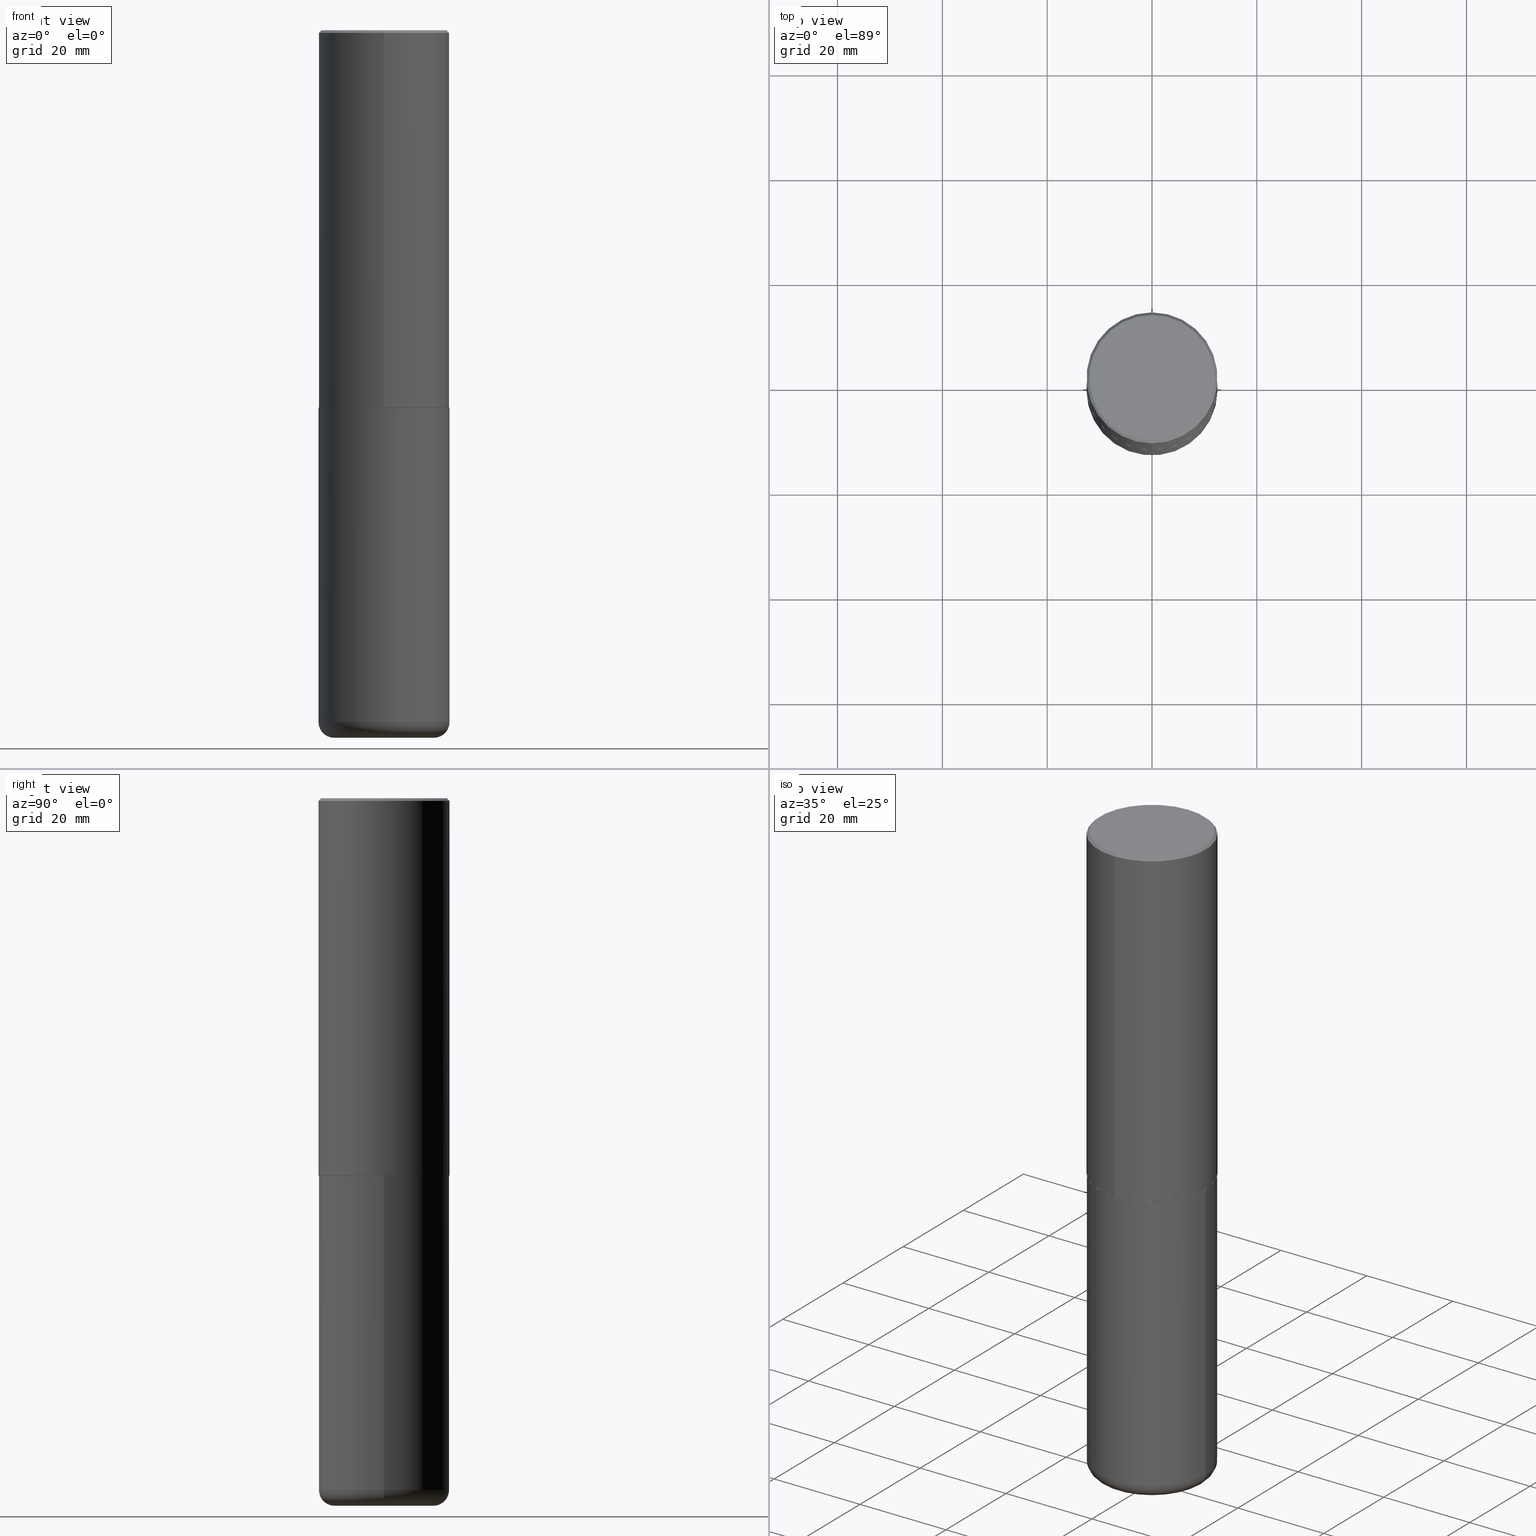
[diagram: canonical four-view strip — front | top / right | iso, engineering-drawing reading convention]
A machine part, canonical four-view strip (front | top / right | iso — engineering-drawing reading convention). The complete STEP part file that produces these views, byte-faithful:
ISO-10303-21;
HEADER;
FILE_DESCRIPTION (( 'STEP AP203' ),
    '1' );
FILE_NAME ('74566.STEP',
    '2024-03-06T15:30:34',
    ( '' ),
    ( '' ),
    'SwSTEP 2.0',
    'SolidWorks 2023',
    '' );
FILE_SCHEMA (( 'CONFIG_CONTROL_DESIGN' ));
ENDSEC;

DATA;
#1 = ADVANCED_FACE ( 'NONE', ( #165 ), #102, .T. ) ;
#2 = CARTESIAN_POINT ( 'NONE',  ( 6.929045905378983914E-29, -9.894783109142616722E-15, -2.833700000000000330 ) ) ;
#3 = ORIENTED_EDGE ( 'NONE', *, *, #220, .F. ) ;
#4 = FACE_OUTER_BOUND ( 'NONE', #190, .T. ) ;
#5 = CIRCLE ( 'NONE', #189, 0.4911499999999999755 ) ;
#6 = CARTESIAN_POINT ( 'NONE',  ( 4.890458344481786073E-31, -6.983649016580912824E-17, -0.02000000000000010797 ) ) ;
#7 = VERTEX_POINT ( 'NONE', #270 ) ;
#8 = ORIENTED_EDGE ( 'NONE', *, *, #78, .T. ) ;
#9 = CARTESIAN_POINT ( 'NONE',  ( 6.931491134551223323E-29, -9.898274933650907147E-15, -2.834700000000000220 ) ) ;
#10 = ORIENTED_EDGE ( 'NONE', *, *, #351, .F. ) ;
#11 = DIRECTION ( 'NONE',  ( -2.445468806185136597E-29, 3.491481338843145583E-15, 1.000000000000000000 ) ) ;
#12 = ORIENTED_EDGE ( 'NONE', *, *, #244, .F. ) ;
#13 = DIRECTION ( 'NONE',  ( -2.445468806185136597E-29, 3.491481338843145583E-15, 1.000000000000000000 ) ) ;
#14 =( LENGTH_UNIT ( ) NAMED_UNIT ( * ) SI_UNIT ( $, .METRE. ) );
#15 = CONICAL_SURFACE ( 'NONE', #378, 0.4911499999999999755, 0.7853981633977213939 ) ;
#16 = CARTESIAN_POINT ( 'NONE',  ( -3.429682119145539948E-15, -0.4911500000000098565, -2.834699999999998443 ) ) ;
#17 = DIRECTION ( 'NONE',  ( 7.105427357601001859E-15, 1.000000000000000000, -3.491481338843145583E-15 ) ) ;
#18 = DIRECTION ( 'NONE',  ( -2.445468806185136597E-29, 3.491481338843145583E-15, 1.000000000000000000 ) ) ;
#19 = DIRECTION ( 'NONE',  ( 1.000000000000000000, -6.982962677686265922E-15, 4.876176775795935793E-29 ) ) ;
#20 = CIRCLE ( 'NONE', #370, 0.4921500000000003094 ) ;
#21 = CARTESIAN_POINT ( 'NONE',  ( 6.932170424893007423E-29, -9.897302151218665974E-15, -2.834700000000000220 ) ) ;
#22 = EDGE_CURVE ( 'NONE', #402, #34, #335, .T. ) ;
#23 = PERSON_AND_ORGANIZATION_ROLE ( 'classification_officer' ) ;
#24 = APPROVAL_ROLE ( '' ) ;
#25 = CIRCLE ( 'NONE', #115, 0.4911499999999999755 ) ;
#26 = LOCAL_TIME ( 10, 30, 34.00000000000000000, #352 ) ;
#27 = DATE_AND_TIME ( #286, #150 ) ;
#28 = ORIENTED_EDGE ( 'NONE', *, *, #49, .T. ) ;
#29 = EDGE_CURVE ( 'NONE', #7, #127, #368, .T. ) ;
#30 = PRODUCT_DEFINITION_FORMATION_WITH_SPECIFIED_SOURCE ( 'ANY', '', #360, .NOT_KNOWN. ) ;
#31 = DIRECTION ( 'NONE',  ( -2.445229172240879339E-29, 3.491824508290438613E-15, 1.000000000000000000 ) ) ;
#32 = EDGE_CURVE ( 'NONE', #33, #401, #364, .T. ) ;
#33 = VERTEX_POINT ( 'NONE', #87 ) ;
#34 = VERTEX_POINT ( 'NONE', #197 ) ;
#35 = CIRCLE ( 'NONE', #304, 0.4921499999999999764 ) ;
#36 = CARTESIAN_POINT ( 'NONE',  ( 0.4921499999999999764, -3.436665081823295777E-15, 2.399810400207969603E-29 ) ) ;
#37 = ORIENTED_EDGE ( 'NONE', *, *, #291, .T. ) ;
#38 = CC_DESIGN_SECURITY_CLASSIFICATION ( #415, ( #30 ) ) ;
#39 = CARTESIAN_POINT ( 'NONE',  ( 0.4921499999999999764, -1.333396723304196175E-14, -2.834700000000000220 ) ) ;
#40 = VERTEX_POINT ( 'NONE', #39 ) ;
#41 = DIRECTION ( 'NONE',  ( -1.000000000000000000, 6.982962677686265922E-15, -4.876176775795935793E-29 ) ) ;
#42 = DIRECTION ( 'NONE',  ( -2.445229172240879899E-29, 3.491824508290438219E-15, 1.000000000000000000 ) ) ;
#43 = CARTESIAN_POINT ( 'NONE',  ( 0.000000000000000000, 0.000000000000000000, 0.000000000000000000 ) ) ;
#44 = LENGTH_MEASURE_WITH_UNIT ( LENGTH_MEASURE( 0.02539999999999999897 ), #14 );
#45 = AXIS2_PLACEMENT_3D ( 'NONE', #43, #375, #19 ) ;
#46 = DIRECTION ( 'NONE',  ( -4.851104656540961908E-15, -0.7071067811865496822, -0.7071067811865453523 ) ) ;
#47 = ADVANCED_FACE ( 'NONE', ( #4 ), #229, .T. ) ;
#48 = DIRECTION ( 'NONE',  ( -6.982962677686265922E-15, -1.000000000000000000, 3.330506545156063891E-15 ) ) ;
#49 = EDGE_CURVE ( 'NONE', #401, #167, #155, .T. ) ;
#50 = AXIS2_PLACEMENT_3D ( 'NONE', #376, #208, #380 ) ;
#51 = APPROVAL ( #52, 'UNSPECIFIED' ) ;
#52 = APPROVAL_STATUS ( 'not_yet_approved' ) ;
#53 = PERSON_AND_ORGANIZATION ( #163, #215 ) ;
#54 = VERTEX_POINT ( 'NONE', #16 ) ;
#55 = CIRCLE ( 'NONE', #340, 0.4921499999999999764 ) ;
#56 = CC_DESIGN_PERSON_AND_ORGANIZATION_ASSIGNMENT ( #416, #388, ( #360 ) ) ;
#57 = APPROVAL_STATUS ( 'not_yet_approved' ) ;
#58 = CALENDAR_DATE ( 2024, 6, 3 ) ;
#59 = AXIS2_PLACEMENT_3D ( 'NONE', #140, #110, #114 ) ;
#60 = LOCAL_TIME ( 10, 30, 34.00000000000000000, #85 ) ;
#61 = DIRECTION ( 'NONE',  ( -2.445229172240879899E-29, 3.491824508290438613E-15, 1.000000000000000000 ) ) ;
#62 = ORIENTED_EDGE ( 'NONE', *, *, #99, .T. ) ;
#63 = DIRECTION ( 'NONE',  ( -2.445229172240879899E-29, 3.491824508290438219E-15, 1.000000000000000000 ) ) ;
#64 = ORIENTED_EDGE ( 'NONE', *, *, #168, .T. ) ;
#65 = CARTESIAN_POINT ( 'NONE',  ( 1.270885683886353718E-28, -1.814487936983394718E-14, -5.196900000000000297 ) ) ;
#66 = ORIENTED_EDGE ( 'NONE', *, *, #406, .T. ) ;
#67 = ORIENTED_EDGE ( 'NONE', *, *, #75, .T. ) ;
#68 = CC_DESIGN_PERSON_AND_ORGANIZATION_ASSIGNMENT ( #249, #212, ( #30 ) ) ;
#69 = VECTOR ( 'NONE', #369, 39.37007874015748143 ) ;
#70 = CARTESIAN_POINT ( 'NONE',  ( 1.270885683886353718E-28, -1.814487936983394718E-14, -5.196900000000000297 ) ) ;
#71 = CARTESIAN_POINT ( 'NONE',  ( 0.000000000000000000, 0.000000000000000000, 0.000000000000000000 ) ) ;
#72 = CARTESIAN_POINT ( 'NONE',  ( 1.299766670487400218E-28, -1.855722331595131973E-14, -5.315000000000000391 ) ) ;
#73 = CARTESIAN_POINT ( 'NONE',  ( 0.000000000000000000, 0.000000000000000000, 0.000000000000000000 ) ) ;
#74 = DIRECTION ( 'NONE',  ( -6.982962677686266711E-15, -1.000000000000000000, 3.491481338843145583E-15 ) ) ;
#75 = EDGE_CURVE ( 'NONE', #151, #127, #396, .T. ) ;
#76 = CYLINDRICAL_SURFACE ( 'NONE', #188, 0.4921500000000000874 ) ;
#77 = CARTESIAN_POINT ( 'NONE',  ( 4.890458344481786073E-31, -6.983649016580912824E-17, -0.02000000000000010797 ) ) ;
#78 = EDGE_CURVE ( 'NONE', #349, #401, #206, .T. ) ;
#79 = FACE_OUTER_BOUND ( 'NONE', #269, .T. ) ;
#80 = AXIS2_PLACEMENT_3D ( 'NONE', #6, #403, #235 ) ;
#81 = COORDINATED_UNIVERSAL_TIME_OFFSET ( 5, 0, .BEHIND. ) ;
#82 = APPROVAL ( #390, 'UNSPECIFIED' ) ;
#83 = ADVANCED_BREP_SHAPE_REPRESENTATION ( '74566', ( #117, #257, #94 ), #311 ) ;
#84 = EDGE_LOOP ( 'NONE', ( #62, #289, #232, #264 ) ) ;
#85 = COORDINATED_UNIVERSAL_TIME_OFFSET ( 5, 0, .BEHIND. ) ;
#86 = AXIS2_PLACEMENT_3D ( 'NONE', #101, #17, #116 ) ;
#87 = CARTESIAN_POINT ( 'NONE',  ( -3.436665081823228329E-15, -0.4921500000000101904, -2.833699999999998997 ) ) ;
#88 = PERSON_AND_ORGANIZATION ( #163, #215 ) ;
#89 = DIRECTION ( 'NONE',  ( -6.982962677686265922E-15, -1.000000000000000000, 3.491824508290438219E-15 ) ) ;
#90 = VERTEX_POINT ( 'NONE', #343 ) ;
#91 = ADVANCED_FACE ( 'NONE', ( #250 ), #15, .T. ) ;
#92 = ORIENTED_EDGE ( 'NONE', *, *, #320, .T. ) ;
#93 = VECTOR ( 'NONE', #164, 39.37007874015748143 ) ;
#94 = AXIS2_PLACEMENT_3D ( 'NONE', #174, #412, #240 ) ;
#95 = DIRECTION ( 'NONE',  ( -6.982962677686265922E-15, -1.000000000000000000, 3.330506545156063891E-15 ) ) ;
#96 = VERTEX_POINT ( 'NONE', #413 ) ;
#97 = DIRECTION ( 'NONE',  ( -6.982962677686265922E-15, -1.000000000000000000, 3.337287582609300506E-15 ) ) ;
#98 = EDGE_LOOP ( 'NONE', ( #201, #318, #367, #356 ) ) ;
#99 = EDGE_CURVE ( 'NONE', #54, #402, #25, .T. ) ;
#100 = ORIENTED_EDGE ( 'NONE', *, *, #258, .T. ) ;
#101 = CARTESIAN_POINT ( 'NONE',  ( -0.3740499999999999381, -1.548709426672329248E-14, -5.196900000000000297 ) ) ;
#102 = CYLINDRICAL_SURFACE ( 'NONE', #199, 0.4921500000000000874 ) ;
#103 = DIRECTION ( 'NONE',  ( -2.445229172240879899E-29, 3.491824508290438613E-15, 1.000000000000000000 ) ) ;
#104 = VECTOR ( 'NONE', #103, 39.37007874015748143 ) ;
#105 = AXIS2_PLACEMENT_3D ( 'NONE', #70, #11, #166 ) ;
#106 = ADVANCED_FACE ( 'NONE', ( #79 ), #290, .T. ) ;
#107 = DIRECTION ( 'NONE',  ( -2.445468806185136597E-29, 3.491481338843145583E-15, 1.000000000000000000 ) ) ;
#108 = DIRECTION ( 'NONE',  ( -2.445229172240879899E-29, 3.491824508290438219E-15, 1.000000000000000000 ) ) ;
#109 = DIRECTION ( 'NONE',  ( -6.982962677686265922E-15, -1.000000000000000000, 3.337287582609300506E-15 ) ) ;
#110 = DIRECTION ( 'NONE',  ( 2.445229172240879899E-29, -3.491824508290438219E-15, -1.000000000000000000 ) ) ;
#111 = DIMENSIONAL_EXPONENTS ( 1.000000000000000000, 0.000000000000000000, 0.000000000000000000, 0.000000000000000000, 0.000000000000000000, 0.000000000000000000, 0.000000000000000000 ) ;
#112 = DESIGN_CONTEXT ( 'detailed design', #393, 'design' ) ;
#113 = CLOSED_SHELL ( 'NONE', ( #124, #181, #160, #301, #106, #47 ) ) ;
#114 = DIRECTION ( 'NONE',  ( 6.982962677686265922E-15, 1.000000000000000000, -3.495297233588267464E-15 ) ) ;
#115 = AXIS2_PLACEMENT_3D ( 'NONE', #275, #210, #109 ) ;
#116 = DIRECTION ( 'NONE',  ( -1.000000000000000000, 7.105427357601001859E-15, 0.000000000000000000 ) ) ;
#117 = MANIFOLD_SOLID_BREP ( 'Body-Move/Copy2[1]', #113 ) ;
#118 = DIRECTION ( 'NONE',  ( -2.445229172240879899E-29, 3.491824508290438219E-15, 1.000000000000000000 ) ) ;
#119 = DATE_AND_TIME ( #182, #60 ) ;
#120 = DIRECTION ( 'NONE',  ( 1.000000000000000000, -6.982962677686270655E-15, 0.000000000000000000 ) ) ;
#121 = APPROVAL_ROLE ( '' ) ;
#122 = ORIENTED_EDGE ( 'NONE', *, *, #371, .F. ) ;
#123 = PERSON_AND_ORGANIZATION ( #163, #215 ) ;
#124 = ADVANCED_FACE ( 'NONE', ( #278 ), #382, .T. ) ;
#125 = CC_DESIGN_DATE_AND_TIME_ASSIGNMENT ( #145, #348, ( #415 ) ) ;
#126 = DIRECTION ( 'NONE',  ( 2.438088387897960049E-29, -3.491481338843145188E-15, -1.000000000000000000 ) ) ;
#127 = VERTEX_POINT ( 'NONE', #141 ) ;
#128 = CIRCLE ( 'NONE', #418, 0.4721500000000000696 ) ;
#129 = LINE ( 'NONE', #36, #93 ) ;
#130 = ORIENTED_EDGE ( 'NONE', *, *, #32, .F. ) ;
#131 = EDGE_CURVE ( 'NONE', #33, #34, #20, .T. ) ;
#132 = DIRECTION ( 'NONE',  ( -6.982962677686265922E-15, -1.000000000000000000, 3.337287582609300506E-15 ) ) ;
#133 = ORIENTED_EDGE ( 'NONE', *, *, #131, .T. ) ;
#134 = PLANE ( 'NONE',  #238 ) ;
#135 = CARTESIAN_POINT ( 'NONE',  ( 4.890458344481786073E-31, -6.983649016580912824E-17, -0.02000000000000010797 ) ) ;
#136 = EDGE_CURVE ( 'NONE', #167, #401, #207, .T. ) ;
#137 = AXIS2_PLACEMENT_3D ( 'NONE', #175, #74, #120 ) ;
#138 = CARTESIAN_POINT ( 'NONE',  ( -3.307789109625543325E-15, -0.4721500000000000696, 1.482354981929953537E-15 ) ) ;
#139 = CARTESIAN_POINT ( 'NONE',  ( 6.931491134551223323E-29, -9.898274933650907147E-15, -2.834700000000000220 ) ) ;
#140 = CARTESIAN_POINT ( 'NONE',  ( 4.890458344481786073E-31, -6.983649016580912824E-17, -0.02000000000000010797 ) ) ;
#141 = CARTESIAN_POINT ( 'NONE',  ( 0.4921499999999999764, -2.158154445165724138E-14, -5.196900000000000297 ) ) ;
#142 = VECTOR ( 'NONE', #277, 39.37007874015748143 ) ;
#143 = CARTESIAN_POINT ( 'NONE',  ( 3.436665081823296171E-15, 0.4921499999999999209, -0.02000000000000182535 ) ) ;
#144 = CC_DESIGN_PERSON_AND_ORGANIZATION_ASSIGNMENT ( #123, #152, ( #276 ) ) ;
#145 = DATE_AND_TIME ( #315, #226 ) ;
#146 = EDGE_CURVE ( 'NONE', #90, #167, #310, .T. ) ;
#147 = COORDINATED_UNIVERSAL_TIME_OFFSET ( 5, 0, .BEHIND. ) ;
#148 = CLOSED_SHELL ( 'NONE', ( #91, #1, #271, #305, #329, #176, #224, #248 ) ) ;
#149 = AXIS2_PLACEMENT_3D ( 'NONE', #195, #366, #97 ) ;
#150 = LOCAL_TIME ( 10, 30, 34.00000000000000000, #147 ) ;
#151 = VERTEX_POINT ( 'NONE', #247 ) ;
#152 = PERSON_AND_ORGANIZATION_ROLE ( 'creator' ) ;
#153 = UNCERTAINTY_MEASURE_WITH_UNIT (LENGTH_MEASURE( 1.000000000000000082E-05 ), #306, 'distance_accuracy_value', 'NONE');
#154 = ORIENTED_EDGE ( 'NONE', *, *, #136, .F. ) ;
#155 = CIRCLE ( 'NONE', #407, 0.4921499999999999764 ) ;
#156 = CIRCLE ( 'NONE', #180, 0.3740499999999999381 ) ;
#157 = CARTESIAN_POINT ( 'NONE',  ( 4.066659649933121937E-45, -5.807251931114062973E-31, -1.663099596593768543E-16 ) ) ;
#158 = PLANE ( 'NONE',  #297 ) ;
#159 = ORIENTED_EDGE ( 'NONE', *, *, #261, .F. ) ;
#160 = ADVANCED_FACE ( 'NONE', ( #260 ), #385, .F. ) ;
#161 = DIRECTION ( 'NONE',  ( -2.445468806185136597E-29, 3.491481338843145583E-15, 1.000000000000000000 ) ) ;
#162 = ORIENTED_EDGE ( 'NONE', *, *, #384, .T. ) ;
#163 = PERSON ( 'UNSPECIFIED', 'UNSPECIFIED', 'UNSPECIFIED', ('UNSPECIFIED'), ('UNSPECIFIED'), ('UNSPECIFIED') ) ;
#164 = DIRECTION ( 'NONE',  ( -2.445468806185136877E-29, 3.491481338843145188E-15, 1.000000000000000000 ) ) ;
#165 = FACE_OUTER_BOUND ( 'NONE', #361, .T. ) ;
#166 = DIRECTION ( 'NONE',  ( 1.000000000000000000, -6.982962677686266711E-15, 4.883557194083112340E-29 ) ) ;
#167 = VERTEX_POINT ( 'NONE', #221 ) ;
#168 = EDGE_CURVE ( 'NONE', #96, #40, #55, .T. ) ;
#169 = DIRECTION ( 'NONE',  ( 1.000000000000000000, -6.982962677686265133E-15, 0.000000000000000000 ) ) ;
#170 = DIRECTION ( 'NONE',  ( -6.982962677686265922E-15, -1.000000000000000000, 3.495297233588267464E-15 ) ) ;
#171 = AXIS2_PLACEMENT_3D ( 'NONE', #293, #126, #262 ) ;
#172 =( NAMED_UNIT ( * ) PLANE_ANGLE_UNIT ( ) SI_UNIT ( $, .RADIAN. ) );
#173 = CARTESIAN_POINT ( 'NONE',  ( -3.376394089603258262E-15, -0.4921500000000000319, -0.01999999999999838712 ) ) ;
#174 = CARTESIAN_POINT ( 'NONE',  ( 0.000000000000000000, 0.000000000000000000, 0.000000000000000000 ) ) ;
#175 = CARTESIAN_POINT ( 'NONE',  ( 0.3740499999999999381, -2.075685655942249311E-14, -5.196900000000000297 ) ) ;
#176 = ADVANCED_FACE ( 'NONE', ( #299 ), #354, .T. ) ;
#177 = DIRECTION ( 'NONE',  ( -2.445468806185136597E-29, 3.491481338843145583E-15, 1.000000000000000000 ) ) ;
#178 = AXIS2_PLACEMENT_3D ( 'NONE', #233, #13, #191 ) ;
#179 = CARTESIAN_POINT ( 'NONE',  ( 3.493383360364602601E-15, 0.4911499999999900390, -2.834700000000001996 ) ) ;
#180 = AXIS2_PLACEMENT_3D ( 'NONE', #342, #107, #169 ) ;
#181 = ADVANCED_FACE ( 'NONE', ( #200 ), #213, .T. ) ;
#182 = CALENDAR_DATE ( 2024, 6, 3 ) ;
#183 = DATE_AND_TIME ( #58, #26 ) ;
#184 = AXIS2_PLACEMENT_3D ( 'NONE', #77, #118, #337 ) ;
#185 = ORIENTED_EDGE ( 'NONE', *, *, #371, .T. ) ;
#186 = ORIENTED_EDGE ( 'NONE', *, *, #287, .T. ) ;
#187 = COORDINATED_UNIVERSAL_TIME_OFFSET ( 5, 0, .BEHIND. ) ;
#188 = AXIS2_PLACEMENT_3D ( 'NONE', #73, #42, #279 ) ;
#189 = AXIS2_PLACEMENT_3D ( 'NONE', #9, #268, #132 ) ;
#190 = EDGE_LOOP ( 'NONE', ( #122, #218 ) ) ;
#191 = DIRECTION ( 'NONE',  ( 1.000000000000000000, -6.982962677686265922E-15, 0.000000000000000000 ) ) ;
#192 = APPROVAL ( #57, 'UNSPECIFIED' ) ;
#193 = CARTESIAN_POINT ( 'NONE',  ( 4.066659649933121937E-45, -5.807251931114062973E-31, -1.663099596593768543E-16 ) ) ;
#194 = VERTEX_POINT ( 'NONE', #362 ) ;
#195 = CARTESIAN_POINT ( 'NONE',  ( 6.931491134551223323E-29, -9.898274933650907147E-15, -2.834700000000000220 ) ) ;
#196 = ORIENTED_EDGE ( 'NONE', *, *, #146, .F. ) ;
#197 = CARTESIAN_POINT ( 'NONE',  ( 3.496936074043369184E-15, 0.4921499999999904285, -2.833700000000002106 ) ) ;
#198 = APPLICATION_CONTEXT ( 'configuration controlled 3d designs of mechanical parts and assemblies' ) ;
#199 = AXIS2_PLACEMENT_3D ( 'NONE', #71, #108, #89 ) ;
#200 = FACE_OUTER_BOUND ( 'NONE', #398, .T. ) ;
#201 = ORIENTED_EDGE ( 'NONE', *, *, #406, .F. ) ;
#202 = DIRECTION ( 'NONE',  ( 2.438088387897960049E-29, -3.491481338843145188E-15, -1.000000000000000000 ) ) ;
#203 = FACE_OUTER_BOUND ( 'NONE', #98, .T. ) ;
#204 = CARTESIAN_POINT ( 'NONE',  ( 6.929045905378983914E-29, -9.894783109142616722E-15, -2.833700000000000330 ) ) ;
#205 = CARTESIAN_POINT ( 'NONE',  ( -3.376394089603258262E-15, -0.4921500000000000319, -0.01999999999999838712 ) ) ;
#206 = LINE ( 'NONE', #173, #314 ) ;
#207 = CIRCLE ( 'NONE', #184, 0.4921499999999999764 ) ;
#208 = DIRECTION ( 'NONE',  ( -2.445468806185136597E-29, 3.491481338843145583E-15, 1.000000000000000000 ) ) ;
#209 = DIRECTION ( 'NONE',  ( -2.445468806185136597E-29, 3.491481338843145583E-15, 1.000000000000000000 ) ) ;
#210 = DIRECTION ( 'NONE',  ( -2.445229172240879899E-29, 3.491824508290438219E-15, 1.000000000000000000 ) ) ;
#211 = CARTESIAN_POINT ( 'NONE',  ( -0.4921499999999999764, 3.496936074043332897E-15, -2.420853904668951509E-29 ) ) ;
#212 = PERSON_AND_ORGANIZATION_ROLE ( 'creator' ) ;
#213 = TOROIDAL_SURFACE ( 'NONE', #105, 0.3740499999999999381, 0.1181000000000000383 ) ;
#214 = EDGE_CURVE ( 'NONE', #349, #90, #128, .T. ) ;
#215 = ORGANIZATION ( 'UNSPECIFIED', 'UNSPECIFIED', '' ) ;
#216 = DATE_TIME_ROLE ( 'creation_date' ) ;
#217 = APPROVAL_DATE_TIME ( #119, #192 ) ;
#218 = ORIENTED_EDGE ( 'NONE', *, *, #320, .F. ) ;
#219 = CONICAL_SURFACE ( 'NONE', #59, 0.4921499999999999764, 0.7853981633974479459 ) ;
#220 = EDGE_CURVE ( 'NONE', #34, #167, #231, .T. ) ;
#221 = CARTESIAN_POINT ( 'NONE',  ( 3.436665081823296171E-15, 0.4921499999999999209, -0.02000000000000182535 ) ) ;
#222 = DIRECTION ( 'NONE',  ( -2.445468806185136597E-29, 3.491481338843145583E-15, 1.000000000000000000 ) ) ;
#223 = ORIENTED_EDGE ( 'NONE', *, *, #22, .F. ) ;
#224 = ADVANCED_FACE ( 'NONE', ( #330 ), #134, .F. ) ;
#225 = CONICAL_SURFACE ( 'NONE', #80, 0.4921499999999999764, 0.7853981633974479459 ) ;
#226 = LOCAL_TIME ( 10, 30, 34.00000000000000000, #81 ) ;
#227 = DIRECTION ( 'NONE',  ( 2.445229172240879339E-29, -3.491824508290438613E-15, -1.000000000000000000 ) ) ;
#228 = EDGE_LOOP ( 'NONE', ( #334, #66, #10, #266 ) ) ;
#229 = PLANE ( 'NONE',  #345 ) ;
#230 = ORIENTED_EDGE ( 'NONE', *, *, #136, .T. ) ;
#231 = LINE ( 'NONE', #327, #322 ) ;
#232 = ORIENTED_EDGE ( 'NONE', *, *, #131, .F. ) ;
#233 = CARTESIAN_POINT ( 'NONE',  ( 1.270885683886353718E-28, -1.814487936983394718E-14, -5.196900000000000297 ) ) ;
#234 = ORIENTED_EDGE ( 'NONE', *, *, #78, .F. ) ;
#235 = DIRECTION ( 'NONE',  ( 6.982962677686265922E-15, 1.000000000000000000, -3.495297233588267464E-15 ) ) ;
#236 = EDGE_LOOP ( 'NONE', ( #358, #263 ) ) ;
#237 = PRODUCT_DEFINITION_SHAPE ( 'NONE', 'NONE',  #276 ) ;
#238 = AXIS2_PLACEMENT_3D ( 'NONE', #321, #31, #302 ) ;
#239 = LOCAL_TIME ( 10, 30, 34.00000000000000000, #187 ) ;
#240 = DIRECTION ( 'NONE',  ( 1.000000000000000000, 0.000000000000000000, 0.000000000000000000 ) ) ;
#241 = DIRECTION ( 'NONE',  ( -2.445229172240879899E-29, 3.491824508290438219E-15, 1.000000000000000000 ) ) ;
#242 = CARTESIAN_POINT ( 'NONE',  ( -3.429682119145539948E-15, -0.4911500000000098565, -2.834699999999998443 ) ) ;
#243 = DIRECTION ( 'NONE',  ( 1.000000000000000000, -6.982962677686265922E-15, 4.876176775795935793E-29 ) ) ;
#244 = EDGE_CURVE ( 'NONE', #90, #349, #285, .T. ) ;
#245 = DIRECTION ( 'NONE',  ( -2.445229172240879899E-29, 3.491824508290438219E-15, 1.000000000000000000 ) ) ;
#246 = FACE_OUTER_BOUND ( 'NONE', #387, .T. ) ;
#247 = CARTESIAN_POINT ( 'NONE',  ( 0.3740499999999999381, -2.116920050553986882E-14, -5.315000000000000391 ) ) ;
#248 = ADVANCED_FACE ( 'NONE', ( #325 ), #158, .F. ) ;
#249 = PERSON_AND_ORGANIZATION ( #163, #215 ) ;
#250 = FACE_OUTER_BOUND ( 'NONE', #84, .T. ) ;
#251 = PRODUCT_RELATED_PRODUCT_CATEGORY ( 'detail', '', ( #360 ) ) ;
#252 = AXIS2_PLACEMENT_3D ( 'NONE', #157, #292, #392 ) ;
#253 = DATE_AND_TIME ( #381, #239 ) ;
#254 = APPROVAL_PERSON_ORGANIZATION ( #317, #82, #121 ) ;
#255 = APPROVAL_ROLE ( '' ) ;
#256 = EDGE_LOOP ( 'NONE', ( #326, #64 ) ) ;
#257 = MANIFOLD_SOLID_BREP ( 'Body-Move/Copy2[2]', #148 ) ;
#258 = EDGE_CURVE ( 'NONE', #34, #33, #346, .T. ) ;
#259 = CIRCLE ( 'NONE', #350, 0.4921499999999999764 ) ;
#260 = FACE_OUTER_BOUND ( 'NONE', #256, .T. ) ;
#261 = EDGE_CURVE ( 'NONE', #127, #7, #259, .T. ) ;
#262 = DIRECTION ( 'NONE',  ( -1.000000000000000000, 6.982962677686265922E-15, -4.876176775795935793E-29 ) ) ;
#263 = ORIENTED_EDGE ( 'NONE', *, *, #287, .F. ) ;
#264 = ORIENTED_EDGE ( 'NONE', *, *, #384, .F. ) ;
#265 = FACE_OUTER_BOUND ( 'NONE', #303, .T. ) ;
#266 = ORIENTED_EDGE ( 'NONE', *, *, #282, .F. ) ;
#267 = ORIENTED_EDGE ( 'NONE', *, *, #75, .F. ) ;
#268 = DIRECTION ( 'NONE',  ( -2.445229172240879899E-29, 3.491824508290438219E-15, 1.000000000000000000 ) ) ;
#269 = EDGE_LOOP ( 'NONE', ( #328, #92, #67, #417 ) ) ;
#270 = CARTESIAN_POINT ( 'NONE',  ( -0.4921499999999999764, -1.464794329579061349E-14, -5.196900000000000297 ) ) ;
#271 = ADVANCED_FACE ( 'NONE', ( #265 ), #225, .T. ) ;
#272 = APPLICATION_PROTOCOL_DEFINITION ( 'international standard', 'config_control_design', 1994, #198 ) ;
#273 = VECTOR ( 'NONE', #339, 39.37007874015748143 ) ;
#274 = LINE ( 'NONE', #242, #332 ) ;
#275 = CARTESIAN_POINT ( 'NONE',  ( 6.931491134551223323E-29, -9.898274933650907147E-15, -2.834700000000000220 ) ) ;
#276 = PRODUCT_DEFINITION ( 'UNKNOWN', '', #30, #112 ) ;
#277 = DIRECTION ( 'NONE',  ( -2.445468806185136877E-29, 3.491481338843145188E-15, 1.000000000000000000 ) ) ;
#278 = FACE_OUTER_BOUND ( 'NONE', #228, .T. ) ;
#279 = DIRECTION ( 'NONE',  ( -6.982962677686265922E-15, -1.000000000000000000, 3.491824508290438219E-15 ) ) ;
#280 = CIRCLE ( 'NONE', #86, 0.1181000000000000383 ) ;
#281 = CC_DESIGN_APPROVAL ( #192, ( #276 ) ) ;
#282 = EDGE_CURVE ( 'NONE', #127, #40, #129, .T. ) ;
#283 = PERSON_AND_ORGANIZATION ( #163, #215 ) ;
#284 = PERSON_AND_ORGANIZATION ( #163, #215 ) ;
#285 = CIRCLE ( 'NONE', #252, 0.4721500000000000696 ) ;
#286 = CALENDAR_DATE ( 2024, 6, 3 ) ;
#287 = EDGE_CURVE ( 'NONE', #402, #54, #5, .T. ) ;
#288 = ORIENTED_EDGE ( 'NONE', *, *, #32, .T. ) ;
#289 = ORIENTED_EDGE ( 'NONE', *, *, #22, .T. ) ;
#290 = TOROIDAL_SURFACE ( 'NONE', #408, 0.3740499999999999381, 0.1181000000000000383 ) ;
#291 = EDGE_CURVE ( 'NONE', #194, #7, #280, .T. ) ;
#292 = DIRECTION ( 'NONE',  ( -2.445229172240879899E-29, 3.491824508290438219E-15, 1.000000000000000000 ) ) ;
#293 = CARTESIAN_POINT ( 'NONE',  ( 6.932170424893007423E-29, -9.897302151218665974E-15, -2.834700000000000220 ) ) ;
#294 = ORIENTED_EDGE ( 'NONE', *, *, #214, .F. ) ;
#295 = DIRECTION ( 'NONE',  ( 1.000000000000000000, -6.982962677686265922E-15, 0.000000000000000000 ) ) ;
#296 = ORIENTED_EDGE ( 'NONE', *, *, #258, .F. ) ;
#297 = AXIS2_PLACEMENT_3D ( 'NONE', #400, #227, #357 ) ;
#298 = EDGE_LOOP ( 'NONE', ( #234, #12, #395, #230 ) ) ;
#299 = FACE_OUTER_BOUND ( 'NONE', #331, .T. ) ;
#300 = ORIENTED_EDGE ( 'NONE', *, *, #220, .T. ) ;
#301 = ADVANCED_FACE ( 'NONE', ( #203 ), #308, .T. ) ;
#302 = DIRECTION ( 'NONE',  ( -6.982962677686265922E-15, -1.000000000000000000, 3.491824508290438613E-15 ) ) ;
#303 = EDGE_LOOP ( 'NONE', ( #294, #8, #28, #196 ) ) ;
#304 = AXIS2_PLACEMENT_3D ( 'NONE', #21, #177, #379 ) ;
#305 = ADVANCED_FACE ( 'NONE', ( #336 ), #219, .T. ) ;
#306 =( CONVERSION_BASED_UNIT ( 'INCH', #44 ) LENGTH_UNIT ( ) NAMED_UNIT ( #111 ) );
#307 = DIRECTION ( 'NONE',  ( 1.000000000000000000, -6.982962677686266711E-15, 4.883557194083112340E-29 ) ) ;
#308 = CYLINDRICAL_SURFACE ( 'NONE', #411, 0.4921499999999999764 ) ;
#309 = CARTESIAN_POINT ( 'NONE',  ( 1.270885683886353718E-28, -1.814487936983394718E-14, -5.196900000000000297 ) ) ;
#310 = LINE ( 'NONE', #143, #273 ) ;
#311 =( GEOMETRIC_REPRESENTATION_CONTEXT ( 3 ) GLOBAL_UNCERTAINTY_ASSIGNED_CONTEXT ( ( #153 ) ) GLOBAL_UNIT_ASSIGNED_CONTEXT ( ( #306, #172, #312 ) ) REPRESENTATION_CONTEXT ( 'NONE', 'WORKASPACE' ) );
#312 =( NAMED_UNIT ( * ) SI_UNIT ( $, .STERADIAN. ) SOLID_ANGLE_UNIT ( ) );
#313 = PERSON_AND_ORGANIZATION_ROLE ( 'design_supplier' ) ;
#314 = VECTOR ( 'NONE', #46, 39.37007874015748143 ) ;
#315 = CALENDAR_DATE ( 2024, 6, 3 ) ;
#316 = ORIENTED_EDGE ( 'NONE', *, *, #49, .F. ) ;
#317 = PERSON_AND_ORGANIZATION ( #163, #215 ) ;
#318 = ORIENTED_EDGE ( 'NONE', *, *, #29, .T. ) ;
#319 = SECURITY_CLASSIFICATION_LEVEL ( 'unclassified' ) ;
#320 = EDGE_CURVE ( 'NONE', #194, #151, #156, .T. ) ;
#321 = CARTESIAN_POINT ( 'NONE',  ( 6.931491134551223323E-29, -9.898274933650907147E-15, -2.834700000000000220 ) ) ;
#322 = VECTOR ( 'NONE', #61, 39.37007874015748143 ) ;
#323 = APPROVAL_PERSON_ORGANIZATION ( #53, #192, #255 ) ;
#324 = APPROVAL_DATE_TIME ( #27, #51 ) ;
#325 = FACE_OUTER_BOUND ( 'NONE', #363, .T. ) ;
#326 = ORIENTED_EDGE ( 'NONE', *, *, #351, .T. ) ;
#327 = CARTESIAN_POINT ( 'NONE',  ( 3.496936074043333291E-15, 0.4921500000000000874, -1.718501431755139545E-15 ) ) ;
#328 = ORIENTED_EDGE ( 'NONE', *, *, #291, .F. ) ;
#329 = ADVANCED_FACE ( 'NONE', ( #246 ), #76, .T. ) ;
#330 = FACE_OUTER_BOUND ( 'NONE', #236, .T. ) ;
#331 = EDGE_LOOP ( 'NONE', ( #223, #186, #162, #296 ) ) ;
#332 = VECTOR ( 'NONE', #374, 39.37007874015748143 ) ;
#333 = DIRECTION ( 'NONE',  ( -6.982962677686264344E-15, -1.000000000000000000, 3.491824508290437824E-15 ) ) ;
#334 = ORIENTED_EDGE ( 'NONE', *, *, #261, .T. ) ;
#335 = LINE ( 'NONE', #405, #69 ) ;
#336 = FACE_OUTER_BOUND ( 'NONE', #298, .T. ) ;
#337 = DIRECTION ( 'NONE',  ( -6.982962677686265922E-15, -1.000000000000000000, 3.495297233588267464E-15 ) ) ;
#338 = LINE ( 'NONE', #211, #142 ) ;
#339 = DIRECTION ( 'NONE',  ( 4.937700262164545676E-15, 0.7071067811865447972, -0.7071067811865502373 ) ) ;
#340 = AXIS2_PLACEMENT_3D ( 'NONE', #355, #222, #394 ) ;
#341 = APPROVAL_PERSON_ORGANIZATION ( #284, #51, #24 ) ;
#342 = CARTESIAN_POINT ( 'NONE',  ( 1.299766670487400218E-28, -1.855722331595131973E-14, -5.315000000000000391 ) ) ;
#343 = CARTESIAN_POINT ( 'NONE',  ( 3.366835455046433267E-15, 0.4721500000000000696, -1.814974901248707542E-15 ) ) ;
#344 = CC_DESIGN_PERSON_AND_ORGANIZATION_ASSIGNMENT ( #283, #23, ( #415 ) ) ;
#345 = AXIS2_PLACEMENT_3D ( 'NONE', #72, #202, #41 ) ;
#346 = CIRCLE ( 'NONE', #414, 0.4921500000000003094 ) ;
#347 = CC_DESIGN_APPROVAL ( #51, ( #415 ) ) ;
#348 = DATE_TIME_ROLE ( 'classification_date' ) ;
#349 = VERTEX_POINT ( 'NONE', #138 ) ;
#350 = AXIS2_PLACEMENT_3D ( 'NONE', #65, #161, #295 ) ;
#351 = EDGE_CURVE ( 'NONE', #40, #96, #35, .T. ) ;
#352 = COORDINATED_UNIVERSAL_TIME_OFFSET ( 5, 0, .BEHIND. ) ;
#353 = SHAPE_DEFINITION_REPRESENTATION ( #237, #83 ) ;
#354 = CONICAL_SURFACE ( 'NONE', #149, 0.4911499999999999755, 0.7853981633977213939 ) ;
#355 = CARTESIAN_POINT ( 'NONE',  ( 6.932170424893007423E-29, -9.897302151218665974E-15, -2.834700000000000220 ) ) ;
#356 = ORIENTED_EDGE ( 'NONE', *, *, #168, .F. ) ;
#357 = DIRECTION ( 'NONE',  ( 6.982962677686265922E-15, 1.000000000000000000, -3.491824508290438613E-15 ) ) ;
#358 = ORIENTED_EDGE ( 'NONE', *, *, #99, .F. ) ;
#359 = CC_DESIGN_PERSON_AND_ORGANIZATION_ASSIGNMENT ( #88, #313, ( #30 ) ) ;
#360 = PRODUCT ( '74566', '74566', '', ( #372 ) ) ;
#361 = EDGE_LOOP ( 'NONE', ( #133, #300, #316, #130 ) ) ;
#362 = CARTESIAN_POINT ( 'NONE',  ( -0.3740499999999999381, -1.527369075431564084E-14, -5.315000000000000391 ) ) ;
#363 = EDGE_LOOP ( 'NONE', ( #365, #404 ) ) ;
#364 = LINE ( 'NONE', #373, #104 ) ;
#365 = ORIENTED_EDGE ( 'NONE', *, *, #244, .T. ) ;
#366 = DIRECTION ( 'NONE',  ( -2.445229172240879899E-29, 3.491824508290438219E-15, 1.000000000000000000 ) ) ;
#367 = ORIENTED_EDGE ( 'NONE', *, *, #282, .T. ) ;
#368 = CIRCLE ( 'NONE', #178, 0.4921499999999999764 ) ;
#369 = DIRECTION ( 'NONE',  ( 5.024295867789434219E-15, 0.7071067811867430830, 0.7071067811863519514 ) ) ;
#370 = AXIS2_PLACEMENT_3D ( 'NONE', #204, #245, #48 ) ;
#371 = EDGE_CURVE ( 'NONE', #151, #194, #389, .T. ) ;
#372 = MECHANICAL_CONTEXT ( 'NONE', #198, 'mechanical' ) ;
#373 = CARTESIAN_POINT ( 'NONE',  ( -3.436665081823296565E-15, -0.4921500000000000874, 1.718501431755139545E-15 ) ) ;
#374 = DIRECTION ( 'NONE',  ( -4.937700262165896205E-15, -0.7071067811867381980, 0.7071067811863568364 ) ) ;
#375 = DIRECTION ( 'NONE',  ( -2.445468806185136597E-29, 3.491481338843145583E-15, 1.000000000000000000 ) ) ;
#376 = CARTESIAN_POINT ( 'NONE',  ( 1.299766670487400218E-28, -1.855722331595131973E-14, -5.315000000000000391 ) ) ;
#377 = DIRECTION ( 'NONE',  ( -6.982962677686265922E-15, -1.000000000000000000, 3.337287582609300506E-15 ) ) ;
#378 = AXIS2_PLACEMENT_3D ( 'NONE', #139, #410, #377 ) ;
#379 = DIRECTION ( 'NONE',  ( 1.000000000000000000, -6.982962677686265922E-15, 0.000000000000000000 ) ) ;
#380 = DIRECTION ( 'NONE',  ( 1.000000000000000000, -6.982962677686265133E-15, 0.000000000000000000 ) ) ;
#381 = CALENDAR_DATE ( 2024, 6, 3 ) ;
#382 = CYLINDRICAL_SURFACE ( 'NONE', #45, 0.4921499999999999764 ) ;
#383 = APPROVAL_DATE_TIME ( #253, #82 ) ;
#384 = EDGE_CURVE ( 'NONE', #54, #33, #274, .T. ) ;
#385 = PLANE ( 'NONE',  #171 ) ;
#386 = APPLICATION_PROTOCOL_DEFINITION ( 'international standard', 'config_control_design', 1994, #393 ) ;
#387 = EDGE_LOOP ( 'NONE', ( #3, #100, #288, #154 ) ) ;
#388 = PERSON_AND_ORGANIZATION_ROLE ( 'design_owner' ) ;
#389 = CIRCLE ( 'NONE', #50, 0.3740499999999999381 ) ;
#390 = APPROVAL_STATUS ( 'not_yet_approved' ) ;
#391 = CC_DESIGN_APPROVAL ( #82, ( #30 ) ) ;
#392 = DIRECTION ( 'NONE',  ( -6.982962677686264344E-15, -1.000000000000000000, 3.491824508290437824E-15 ) ) ;
#393 = APPLICATION_CONTEXT ( 'configuration controlled 3d designs of mechanical parts and assemblies' ) ;
#394 = DIRECTION ( 'NONE',  ( 1.000000000000000000, -6.982962677686265922E-15, 0.000000000000000000 ) ) ;
#395 = ORIENTED_EDGE ( 'NONE', *, *, #146, .T. ) ;
#396 = CIRCLE ( 'NONE', #137, 0.1181000000000000383 ) ;
#397 = DIRECTION ( 'NONE',  ( -2.445229172240879899E-29, 3.491824508290438219E-15, 1.000000000000000000 ) ) ;
#398 = EDGE_LOOP ( 'NONE', ( #185, #37, #159, #267 ) ) ;
#399 = CC_DESIGN_DATE_AND_TIME_ASSIGNMENT ( #183, #216, ( #276 ) ) ;
#400 = CARTESIAN_POINT ( 'NONE',  ( 3.297005828269570364E-15, 0.4721500000000000696, -1.731819921419018991E-15 ) ) ;
#401 = VERTEX_POINT ( 'NONE', #205 ) ;
#402 = VERTEX_POINT ( 'NONE', #179 ) ;
#403 = DIRECTION ( 'NONE',  ( 2.445229172240879899E-29, -3.491824508290438219E-15, -1.000000000000000000 ) ) ;
#404 = ORIENTED_EDGE ( 'NONE', *, *, #214, .T. ) ;
#405 = CARTESIAN_POINT ( 'NONE',  ( 3.489830646685800520E-15, 0.4911499999999900390, -2.834700000000001996 ) ) ;
#406 = EDGE_CURVE ( 'NONE', #7, #96, #338, .T. ) ;
#407 = AXIS2_PLACEMENT_3D ( 'NONE', #135, #241, #170 ) ;
#408 = AXIS2_PLACEMENT_3D ( 'NONE', #309, #209, #307 ) ;
#409 = CARTESIAN_POINT ( 'NONE',  ( 0.000000000000000000, 0.000000000000000000, 0.000000000000000000 ) ) ;
#410 = DIRECTION ( 'NONE',  ( -2.445229172240879899E-29, 3.491824508290438219E-15, 1.000000000000000000 ) ) ;
#411 = AXIS2_PLACEMENT_3D ( 'NONE', #409, #18, #243 ) ;
#412 = DIRECTION ( 'NONE',  ( 0.000000000000000000, 0.000000000000000000, 1.000000000000000000 ) ) ;
#413 = CARTESIAN_POINT ( 'NONE',  ( -0.4921499999999999764, -1.052415468648297289E-14, -2.834700000000000220 ) ) ;
#414 = AXIS2_PLACEMENT_3D ( 'NONE', #2, #397, #95 ) ;
#415 = SECURITY_CLASSIFICATION ( '', '', #319 ) ;
#416 = PERSON_AND_ORGANIZATION ( #163, #215 ) ;
#417 = ORIENTED_EDGE ( 'NONE', *, *, #29, .F. ) ;
#418 = AXIS2_PLACEMENT_3D ( 'NONE', #193, #63, #333 ) ;
ENDSEC;
END-ISO-10303-21;
